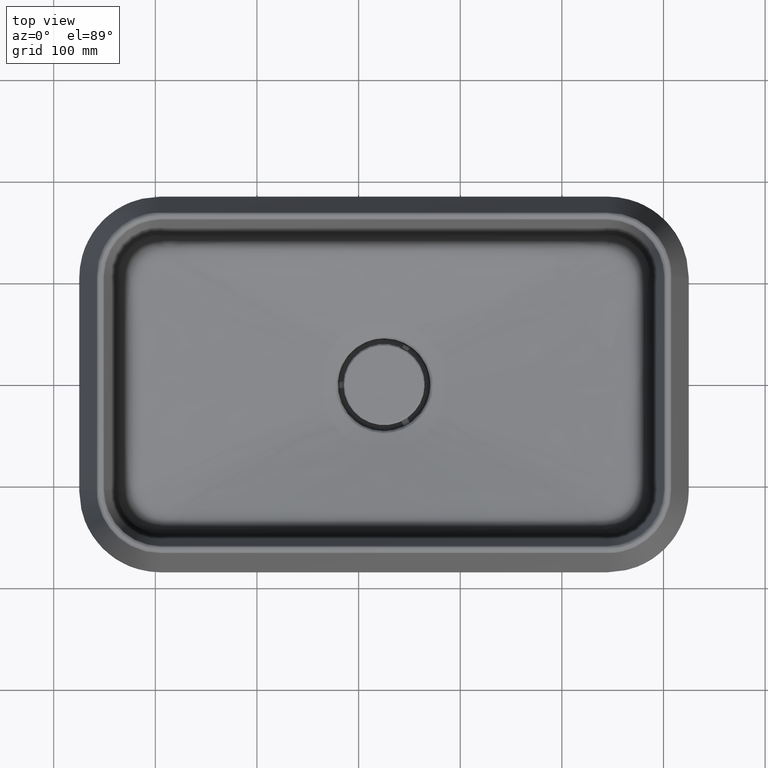
[diagram: clean part render]
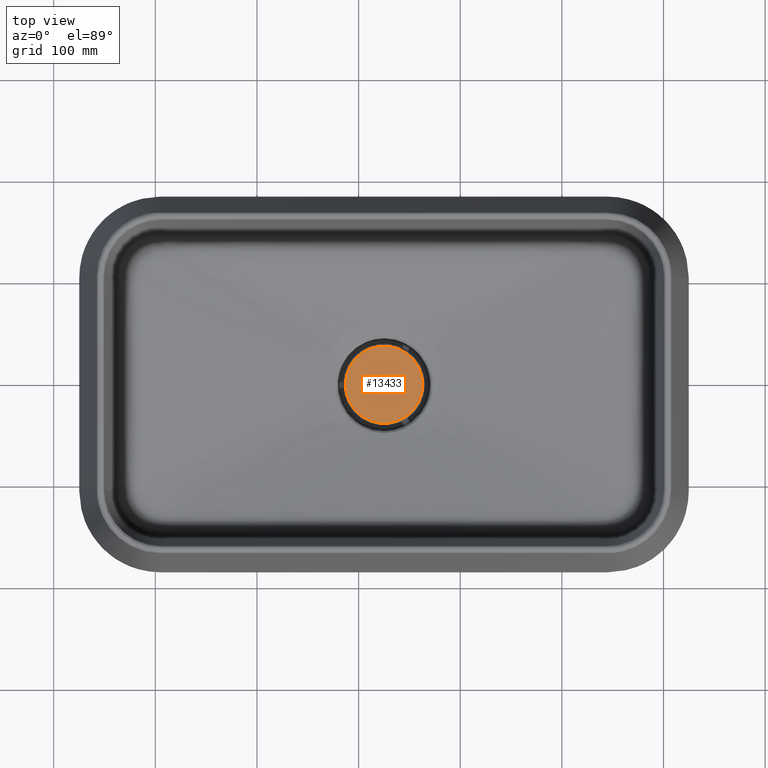
[diagram: same view with one face highlighted and labeled with its STEP entity id]
A machine part, top view. The second image highlights one B-rep face of the part: STEP entity #13433.
In plain terms, the highlighted planar face has unit normal (0, 0, 1).
Its self-contained STEP definition (entity closure, byte-faithful):
#89 = EDGE_CURVE ( 'NONE', #19577, #2688, #5537, .T. ) ;
#592 = ORIENTED_EDGE ( 'NONE', *, *, #89, .T. ) ;
#2688 = VERTEX_POINT ( 'NONE', #8584 ) ;
#4780 = DIRECTION ( 'NONE',  ( 1.000000000000000000, 0.0000000000000000000, -0.0000000000000000000 ) ) ;
#5537 = CIRCLE ( 'NONE', #19379, 38.00000000000003553 ) ;
#6156 = AXIS2_PLACEMENT_3D ( 'NONE', #21744, #21994, #4780 ) ;
#7705 = CIRCLE ( 'NONE', #13644, 38.00000000000003553 ) ;
#8584 = CARTESIAN_POINT ( 'NONE',  ( 286.9999999999999432, 200.0000000000000000, -9.999999999999964473 ) ) ;
#9350 = EDGE_CURVE ( 'NONE', #2688, #19577, #7705, .T. ) ;
#13207 = CARTESIAN_POINT ( 'NONE',  ( 363.0000000000000000, 200.0000000000000000, -9.999999999999964473 ) ) ;
#13284 = CARTESIAN_POINT ( 'NONE',  ( 324.9999999999999432, 200.0000000000000000, -9.999999999999964473 ) ) ;
#13433 = ADVANCED_FACE ( 'NONE', ( #23607 ), #14449, .T. ) ;
#13644 = AXIS2_PLACEMENT_3D ( 'NONE', #13284, #20829, #20458 ) ;
#14449 = PLANE ( 'NONE',  #6156 ) ;
#17981 = DIRECTION ( 'NONE',  ( -0.0000000000000000000, 0.0000000000000000000, 1.000000000000000000 ) ) ;
#18343 = ORIENTED_EDGE ( 'NONE', *, *, #9350, .T. ) ;
#18962 = EDGE_LOOP ( 'NONE', ( #592, #18343 ) ) ;
#19379 = AXIS2_PLACEMENT_3D ( 'NONE', #23426, #17981, #19581 ) ;
#19577 = VERTEX_POINT ( 'NONE', #13207 ) ;
#19581 = DIRECTION ( 'NONE',  ( 1.000000000000000000, 0.0000000000000000000, 0.0000000000000000000 ) ) ;
#20458 = DIRECTION ( 'NONE',  ( 1.000000000000000000, 0.0000000000000000000, 0.0000000000000000000 ) ) ;
#20829 = DIRECTION ( 'NONE',  ( -0.0000000000000000000, 0.0000000000000000000, 1.000000000000000000 ) ) ;
#21744 = CARTESIAN_POINT ( 'NONE',  ( 375.0000000000000000, 250.0000000000000000, -10.00000000000000000 ) ) ;
#21994 = DIRECTION ( 'NONE',  ( 0.0000000000000000000, 0.0000000000000000000, 1.000000000000000000 ) ) ;
#23426 = CARTESIAN_POINT ( 'NONE',  ( 324.9999999999999432, 200.0000000000000000, -9.999999999999964473 ) ) ;
#23607 = FACE_OUTER_BOUND ( 'NONE', #18962, .T. ) ;